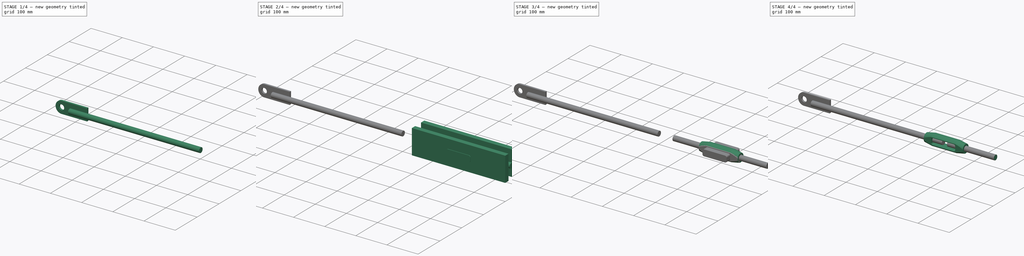
[diagram: build sequence overview — one tinted view per stage of 4, left to right]
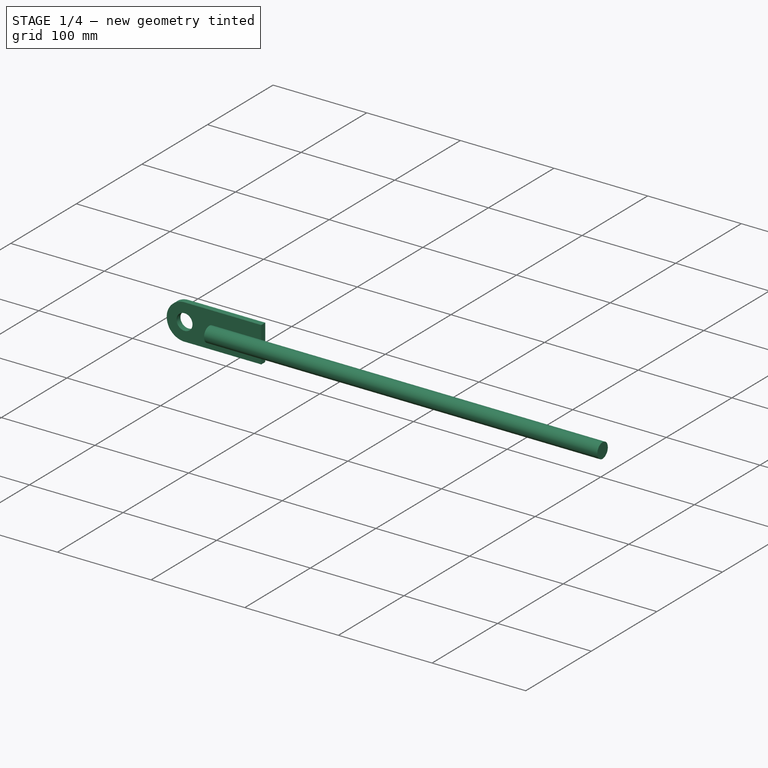
[diagram: stage 1 of 4 — iso view after this stage's code; geometry added in this stage tinted green]
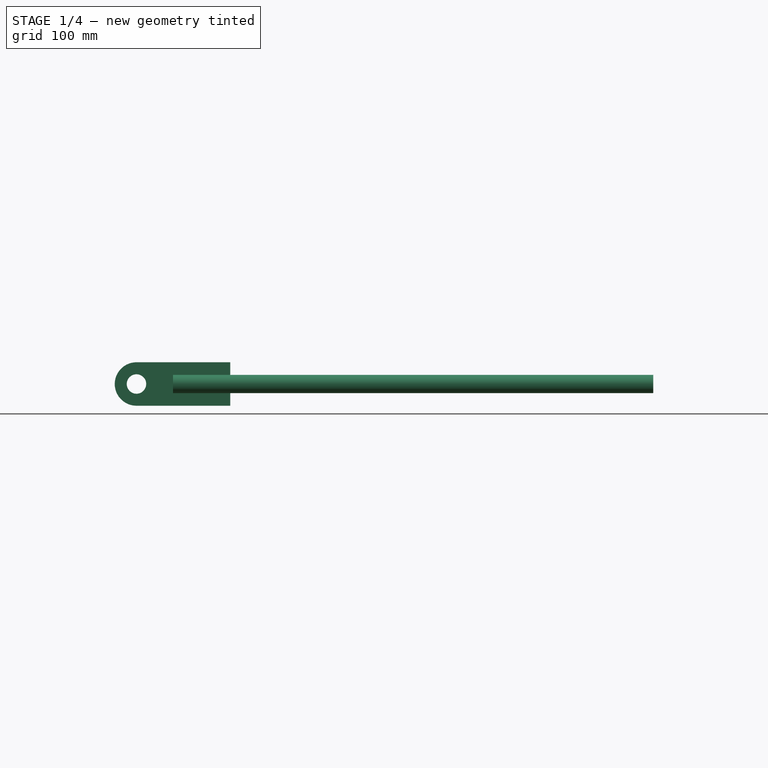
[diagram: stage 1 of 4 — front view after this stage's code; geometry added in this stage tinted green]
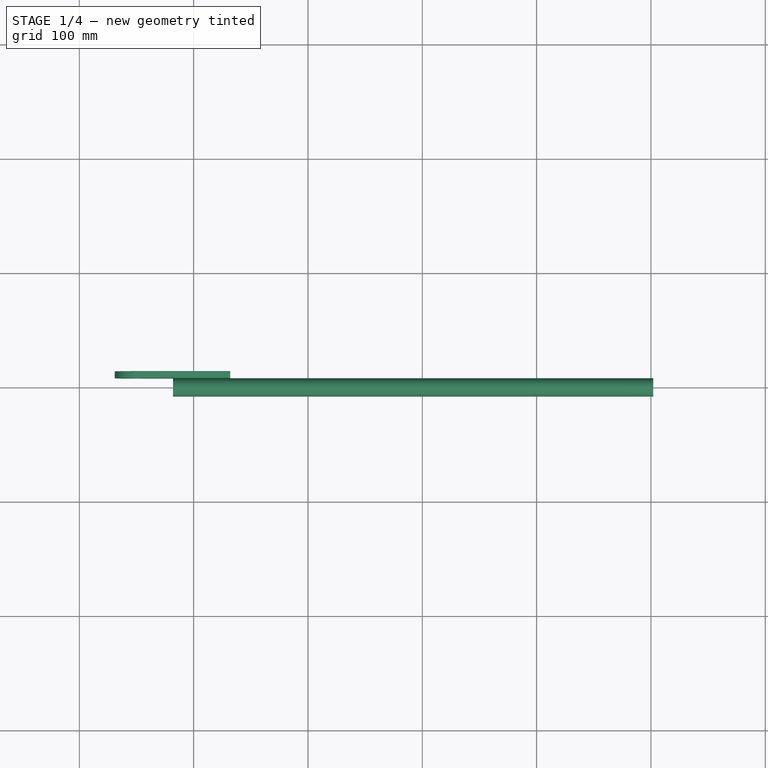
[diagram: stage 1 of 4 — top view after this stage's code; geometry added in this stage tinted green]
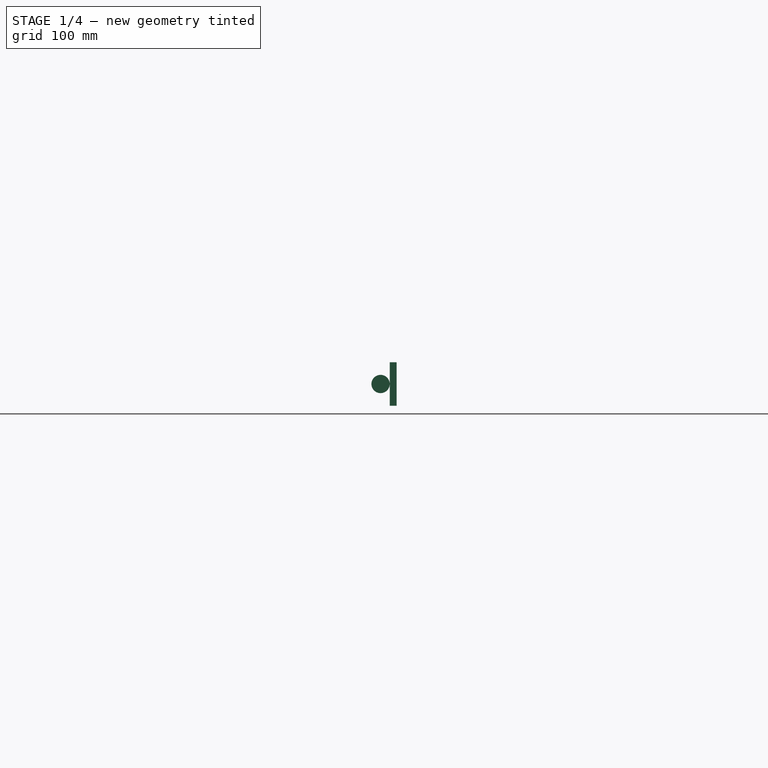
[diagram: stage 1 of 4 — right view after this stage's code; geometry added in this stage tinted green]
FCSTD DOCUMENT  (FreeCAD 1.0R39109 (Git))
Label: trunBackle
License: All rights reserved
objects: Sketcher::SketchObject×5, Part::Extrusion×4, Part::Cut×3, Part::Cylinder×2, Spreadsheet::Sheet×1, Part::Revolution×1, Part::FeaturePython×1, App::Part×1
note: 21 computed .brp shape members not serialized (recipe doc carries the construction recipe); baked Part::Feature solids carry a one-line shape summary decoded from their .brp

FEATURE [Part::Cylinder] Cylinder003  label="rod001"
  Angle = 360
  AttacherType = Attacher::AttachEngine3D
  FirstAngle = 0
  Height = 420
  Placement = pos=(-198,0,-1.37e-13) rot=(0,-1,0;1.5708rad)
  Radius = 8
  SecondAngle = 0
  expr: .Placement.Base.x = -(Spreadsheet001.dia * 3 + Spreadsheet001.lx)
  expr: Height = Spreadsheet001.l1
  expr: Radius = Spreadsheet001.dia / 2
FEATURE [Part::Extrusion] Extrude012
  Base = -> Sketch018
  Dir = (0,-1,2e-16)
  DirMode = 2
  FaceMakerClass = Part::FaceMakerBullseye
  FaceMakerMode = 3
  LengthFwd = 6
  LengthRev = 0
  Placement = pos=(0,-11,0) rot=(0,0,1;0rad)
  Solid = true
  Symmetric = true
  expr: .Placement.Base.y = -(Spreadsheet001.dia / 2 + Spreadsheet001.t0 / 2)
  expr: LengthFwd = Spreadsheet001.t0
FEATURE [Part::FeaturePython] Clone  label="Extrude013"  # Draft clone (typed FeaturePython)
  AttacherType = Attacher::AttachEngine3D
  Fuse = false
  Objects = -> [Extrude012]
  Placement = pos=(-650,11,0) rot=(0,1,0;3.14159rad)
  Scale = (1,1,1)
  expr: .Placement.Base.x = -Spreadsheet001.L0
  expr: .Placement.Base.y = Spreadsheet001.t0 / 2 + Spreadsheet001.dia / 2
FEATURE [App::Part] Part001  label="TurnBackleB"
  Group = -> [Spreadsheet001,Sketch018,Cylinder002,Extrude012,Revolve001,Sketch020,Cut010,Cut009,Extrude009,Extrude010,Extrude011,Sketch021,Sketch019,Sketch022,Cut011,Cylinder003,Clone]
  Origin = -> Origin001
  Placement = pos=(0,0,0) rot=(0,1,0;3.14159rad)
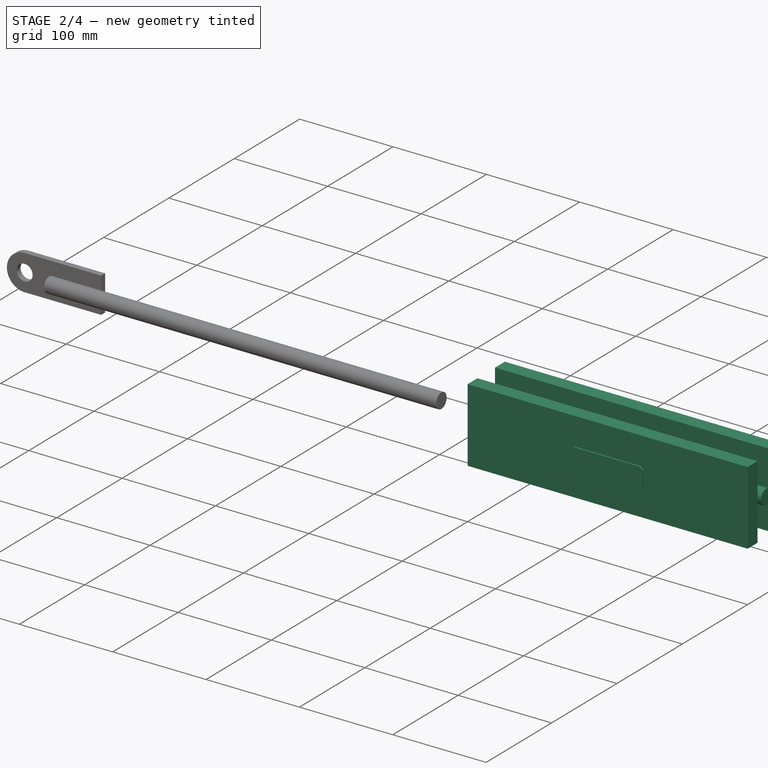
[diagram: stage 2 of 4 — iso view after this stage's code; geometry added in this stage tinted green]
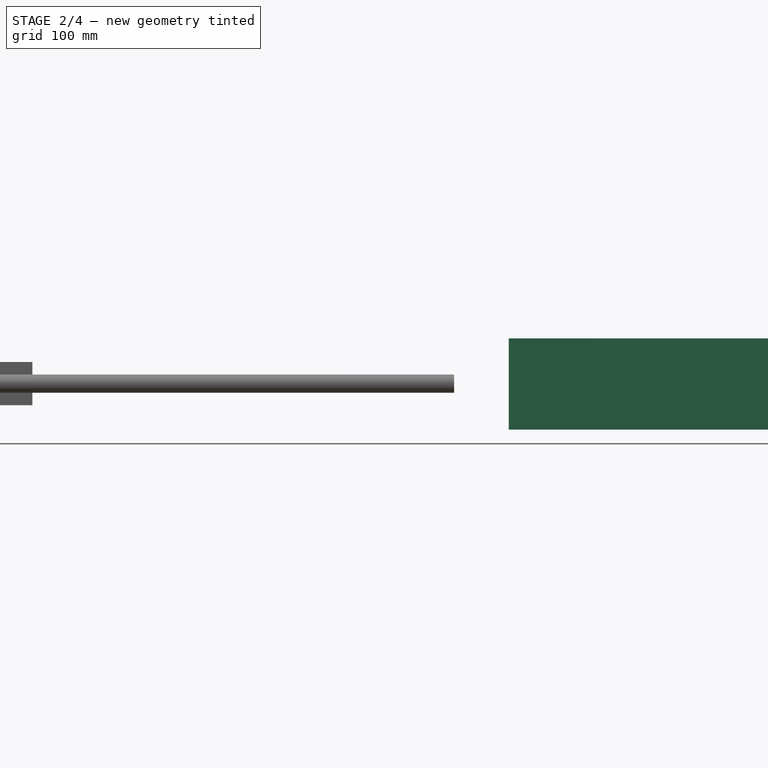
[diagram: stage 2 of 4 — front view after this stage's code; geometry added in this stage tinted green]
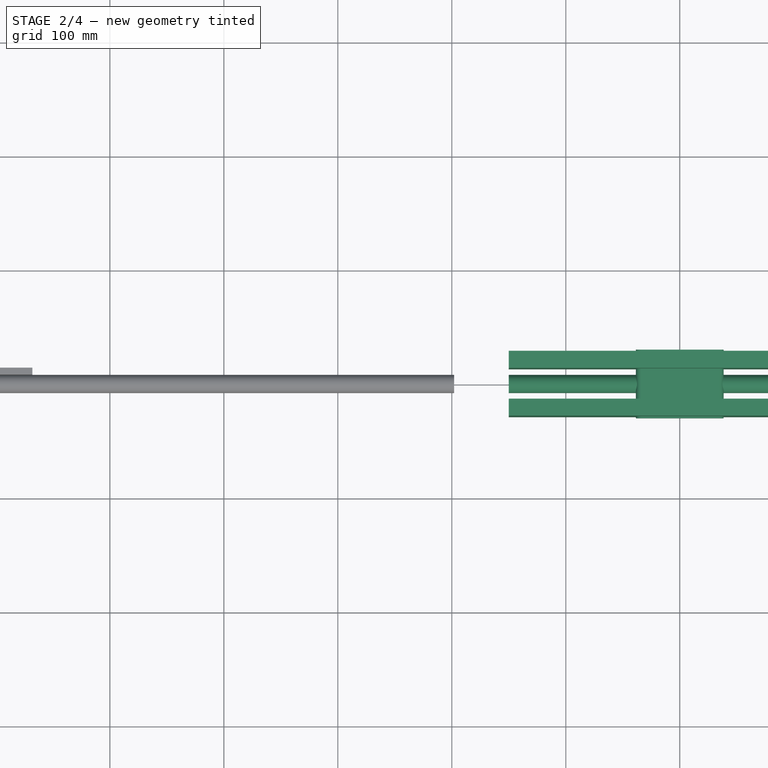
[diagram: stage 2 of 4 — top view after this stage's code; geometry added in this stage tinted green]
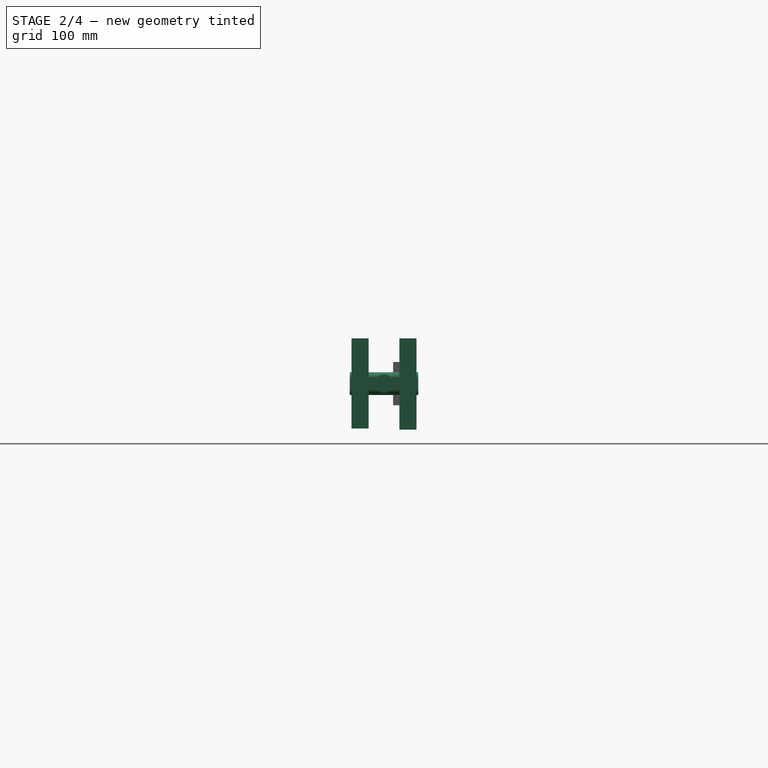
[diagram: stage 2 of 4 — right view after this stage's code; geometry added in this stage tinted green]
FEATURE [Sketcher::SketchObject] Sketch020
  ArcFitTolerance = 0
  FullyConstrained = false
  MakeInternals = false
  Placement = pos=(0,0,0) rot=(0.57735,0.57735,0.57735;2.0944rad)
  expr: Constraints[16] = Spreadsheet001.F6
  expr: Constraints[17] = Spreadsheet001.F6 / 2
  sketch-geometry (8):
    g0: LineSegment StartX=-13.5 StartY=39.685 StartZ=0 EndX=-28.5 EndY=39.685 EndZ=0
    g1: LineSegment StartX=-28.5 StartY=39.685 StartZ=0 EndX=-28.5 EndY=-39.3666 EndZ=0
    g2: LineSegment StartX=-28.5 StartY=-39.3666 StartZ=0 EndX=-13.5 EndY=-39.3666 EndZ=0
    g3: LineSegment StartX=-13.5 StartY=-39.3666 StartZ=0 EndX=-13.5 EndY=39.685 EndZ=0
    g4: LineSegment StartX=13.5 StartY=39.685 StartZ=0 EndX=28.5 EndY=39.685 EndZ=0
    g5: LineSegment StartX=28.5 StartY=39.685 StartZ=0 EndX=28.5 EndY=-40.315 EndZ=0
    g6: LineSegment StartX=28.5 StartY=-40.315 StartZ=0 EndX=13.5 EndY=-40.315 EndZ=0
    g7: LineSegment StartX=13.5 StartY=-40.315 StartZ=0 EndX=13.5 EndY=39.685 EndZ=0
  constraints (22):
    c: Coincident(g0,g1)
    c: Coincident(g1,g2)
    c: Coincident(g2,g3)
    c: Coincident(g3,g0)
    c: Horizontal(g0)
    c: Horizontal(g2)
    c: Vertical(g1)
    c: Vertical(g3)
    c: Coincident(g4,g5)
    c: Coincident(g5,g6)
    c: Coincident(g6,g7)
    c: Coincident(g7,g4)
    c: Horizontal(g4)
    c: Horizontal(g6)
    c: Vertical(g5)
    c: Vertical(g7)
    c: DistanceX(g0,g4) = 27
    c: Distance(g-1,g7) = 13.5
    c: Distance(g5) = 80
    c: Distance(g4) = 15
    c: Distance(g0) = 15
    c: Horizontal(g0,g4)
FEATURE [Part::Extrusion] Extrude009
  Base = -> Sketch020
  Dir = (1,0,0)
  DirMode = 2
  FaceMakerClass = Part::FaceMakerBullseye
  FaceMakerMode = 3
  LengthFwd = 300
  LengthRev = 0
  Solid = true
  Symmetric = true
FEATURE [Sketcher::SketchObject] Sketch021
  ArcFitTolerance = 0
  FullyConstrained = true
  MakeInternals = false
  Placement = pos=(0,0,0) rot=(1,0,0;1.5708rad)
  expr: Constraints[17] = Spreadsheet001.E6
  expr: Constraints[18] = Spreadsheet001.B6 - 2 * Spreadsheet001.C6
  expr: Constraints[19] = (Spreadsheet001.B6 - 2 * Spreadsheet001.C6) / 2
  expr: Constraints[20] = Spreadsheet001.E6 / 2
  sketch-geometry (9):
    g0: LineSegment StartX=38.5 StartY=5 StartZ=0 EndX=38.5 EndY=-5 EndZ=0
    g1: LineSegment StartX=33.5 StartY=-10 StartZ=0 EndX=-33.5 EndY=-10 EndZ=0
    g2: LineSegment StartX=-38.5 StartY=-5 StartZ=0 EndX=-38.5 EndY=5 EndZ=0
    g3: LineSegment StartX=-33.5 StartY=10 StartZ=0 EndX=33.5 EndY=10 EndZ=0
    g4: GeomPoint [constr] X=0 Y=0 Z=0
    g5: ArcOfCircle CenterX=-33.5 CenterY=5 CenterZ=0 NormalX=0 NormalY=0 NormalZ=1 AngleXU=0 Radius=5 StartAngle=1.5708 EndAngle=3.14159
    g6: ArcOfCircle CenterX=-33.5 CenterY=-5 CenterZ=0 NormalX=0 NormalY=0 NormalZ=1 AngleXU=0 Radius=5 StartAngle=3.14159 EndAngle=4.71239
    g7: ArcOfCircle CenterX=33.5 CenterY=-5 CenterZ=0 NormalX=0 NormalY=0 NormalZ=1 AngleXU=0 Radius=5 StartAngle=4.71239 EndAngle=6.28319
    g8: ArcOfCircle CenterX=33.5 CenterY=5 CenterZ=0 NormalX=0 NormalY=0 NormalZ=1 AngleXU=0 Radius=5 StartAngle=0 EndAngle=1.5708
  constraints (21):
    c: Horizontal(g1)
    c: Horizontal(g3)
    c: Vertical(g0)
    c: Vertical(g2)
    c: Coincident(g4,g-1)
    c: Tangent(g3,g5) = 1.5708
    c: Tangent(g2,g5) = 1.5708
    c: Tangent(g1,g6) = 1.5708
    c: Tangent(g2,g6) = 1.5708
    c: Tangent(g1,g7) = 1.5708
    c: Tangent(g0,g7) = 1.5708
    c: Tangent(g0,g8) = 1.5708
    c: Tangent(g3,g8) = 1.5708
    c: Radius(g8) = 5
    c: Equal(g8,g7)
    c: Equal(g7,g6)
    c: Equal(g6,g5)
    c: DistanceY(g1,g3) = 20
    c: DistanceX(g2,g0) = 77
    c: Distance(g4,g2) = 38.5
    c: Distance(g4,g1) = 10
FEATURE [Part::Extrusion] Extrude010
  Base = -> Sketch021
  Dir = (0,-1,2e-16)
  DirMode = 2
  FaceMakerClass = Part::FaceMakerBullseye
  FaceMakerMode = 3
  LengthFwd = 60
  LengthRev = 0
  Solid = true
  Symmetric = true
FEATURE [Sketcher::SketchObject] Sketch022
  ArcFitTolerance = 0
  FullyConstrained = true
  MakeInternals = false
  Placement = pos=(0,0,0) rot=(0.57735,0.57735,0.57735;2.0944rad)
  expr: Constraints[1] = Spreadsheet001.dia / 2
  sketch-geometry (1):
    g0: Circle CenterX=0 CenterY=0 CenterZ=0 NormalX=0 NormalY=0 NormalZ=1 AngleXU=0 Radius=8
  constraints (2):
    c: Coincident(g0,g-1)
    c: Radius(g0) = 8
FEATURE [Part::Extrusion] Extrude011
  Base = -> Sketch022
  Dir = (1,0,0)
  DirMode = 2
  FaceMakerClass = Part::FaceMakerBullseye
  FaceMakerMode = 3
  LengthFwd = 300
  LengthRev = 0
  Solid = true
  Symmetric = true
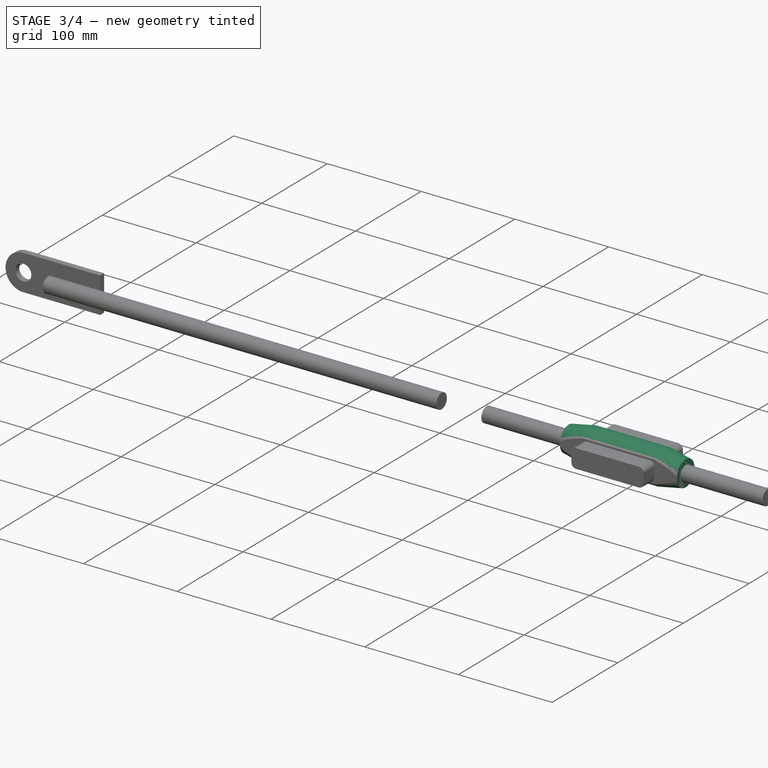
[diagram: stage 3 of 4 — iso view after this stage's code; geometry added in this stage tinted green]
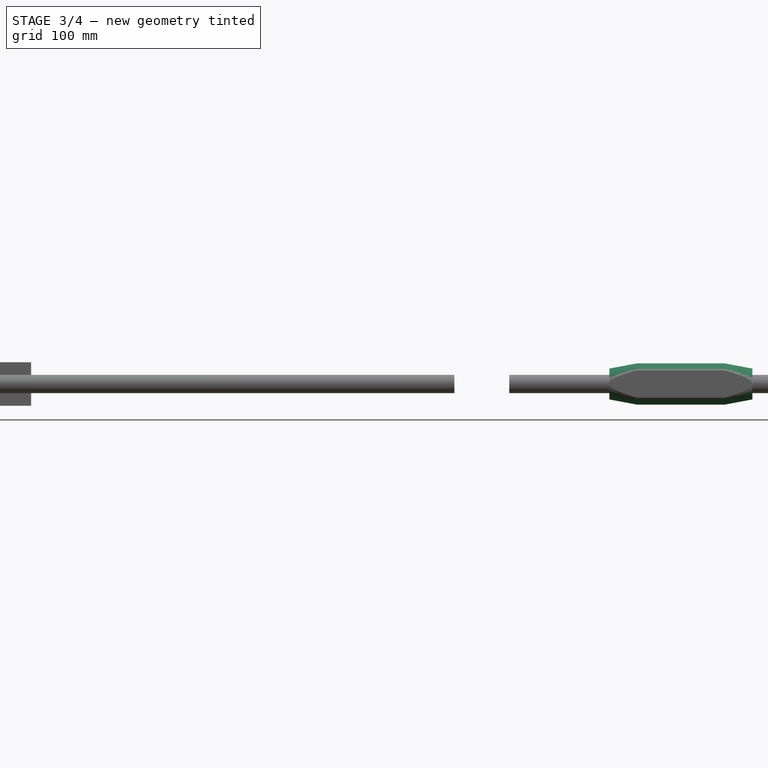
[diagram: stage 3 of 4 — front view after this stage's code; geometry added in this stage tinted green]
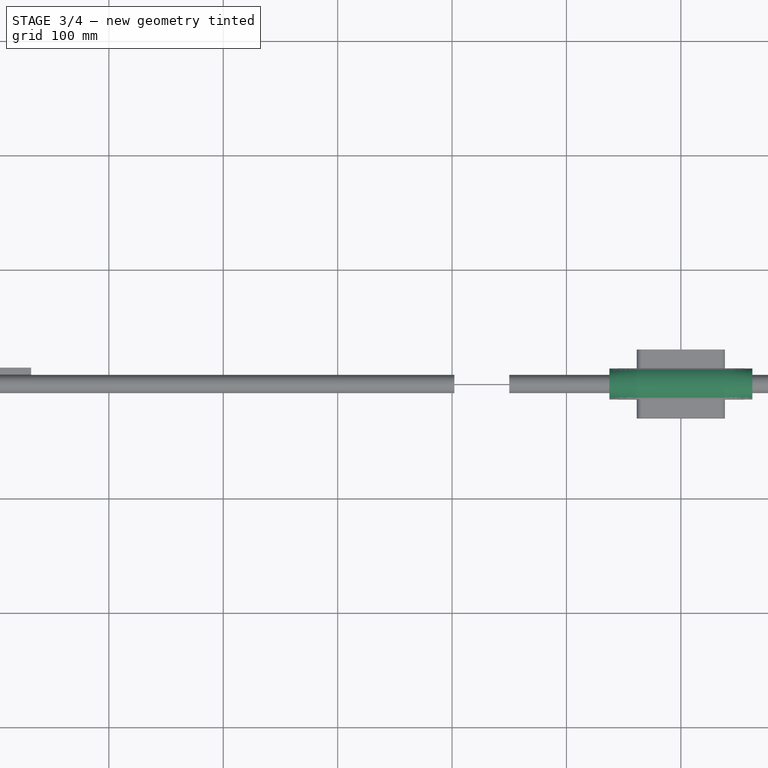
[diagram: stage 3 of 4 — top view after this stage's code; geometry added in this stage tinted green]
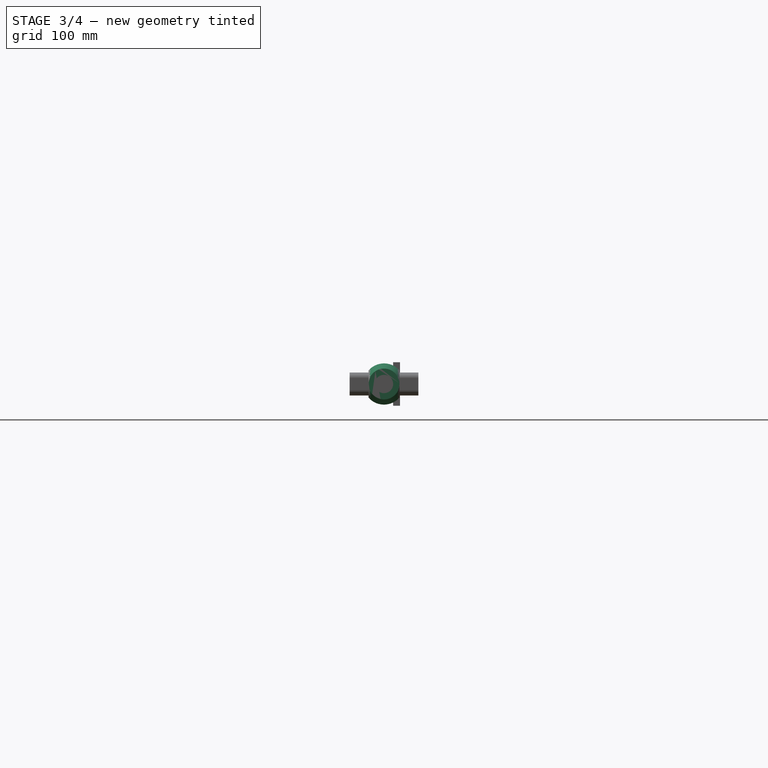
[diagram: stage 3 of 4 — right view after this stage's code; geometry added in this stage tinted green]
FEATURE [Sketcher::SketchObject] Sketch019
  ArcFitTolerance = 0
  FullyConstrained = true
  MakeInternals = false
  Placement = pos=(0,0,0) rot=(1,0,0;1.5708rad)
  expr: Constraints[10] = Spreadsheet001.C6
  expr: Constraints[11] = Spreadsheet001.B6
  expr: Constraints[12] = Spreadsheet001.D6 / 2
  expr: Constraints[13] = Spreadsheet001.F6 / 2
  expr: Constraints[14] = Spreadsheet001.B6 / 2
  expr: Constraints[17] = Spreadsheet001.C6
  sketch-geometry (6):
    g0: LineSegment StartX=-62.5 StartY=0 StartZ=0 EndX=-62.5 EndY=13.5 EndZ=0
    g1: LineSegment StartX=-62.5 StartY=13.5 StartZ=0 EndX=-38.5 EndY=18 EndZ=0
    g2: LineSegment StartX=-38.5 StartY=18 StartZ=0 EndX=38.5 EndY=18 EndZ=0
    g3: LineSegment StartX=38.5 StartY=18 StartZ=0 EndX=62.5 EndY=13.5 EndZ=0
    g4: LineSegment StartX=62.5 StartY=13.5 StartZ=0 EndX=62.5 EndY=0 EndZ=0
    g5: LineSegment StartX=62.5 StartY=0 StartZ=0 EndX=-62.5 EndY=0 EndZ=0
  constraints (18):
    c: PointOnObject(g0,g-1)
    c: Vertical(g0)
    c: Coincident(g0,g1)
    c: Coincident(g1,g2)
    c: Horizontal(g2)
    c: Coincident(g2,g3)
    c: Coincident(g3,g4)
    c: PointOnObject(g4,g-1)
    c: Vertical(g4)
    c: Coincident(g4,g5)
    c: DistanceX(g2,g3) = 24
    c: DistanceX(g0,g3) = 125
    c: Distance(g1,g5) = 18
    c: Distance(g4) = 13.5
    c: DistanceX(g-1,g4) = 62.5
    c: Horizontal(g0,g3)
    c: Coincident(g5,g0)
    c: DistanceX(g0,g1) = 24
FEATURE [Part::Revolution] Revolve001
  Angle = 360
  Axis = (-1,0,0)
  AxisLink = -> Sketch019 [Edge6]
  Base = (-62.5,0,0)
  FaceMakerClass = Part::FaceMakerBullseye
  Solid = true
  Source = -> Sketch019
  Symmetric = false
FEATURE [Part::Cut] Cut009
  Base = -> Revolve001
  Tool = -> Extrude009
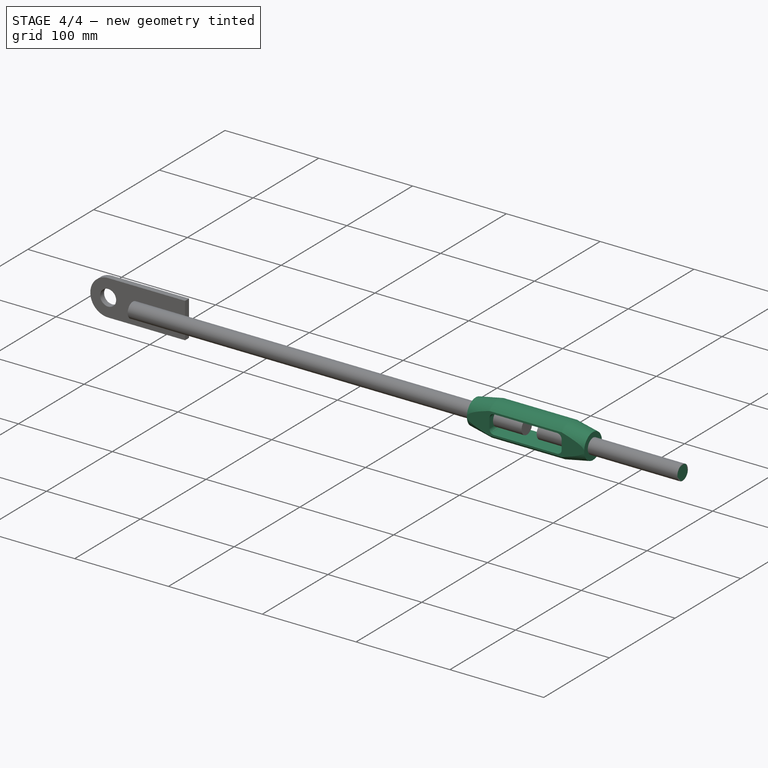
[diagram: stage 4 of 4 — iso view after this stage's code; geometry added in this stage tinted green]
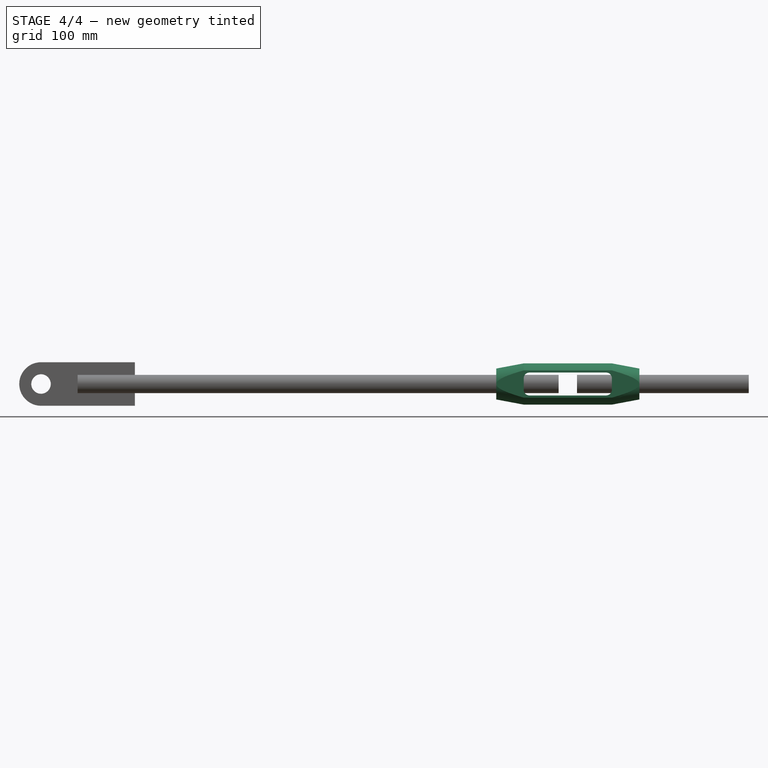
[diagram: stage 4 of 4 — front view after this stage's code; geometry added in this stage tinted green]
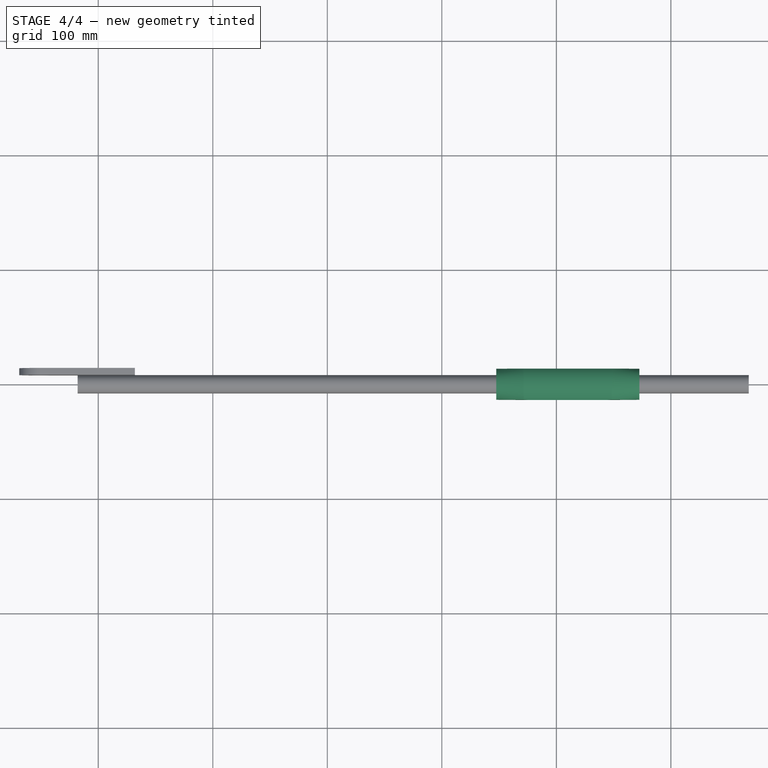
[diagram: stage 4 of 4 — top view after this stage's code; geometry added in this stage tinted green]
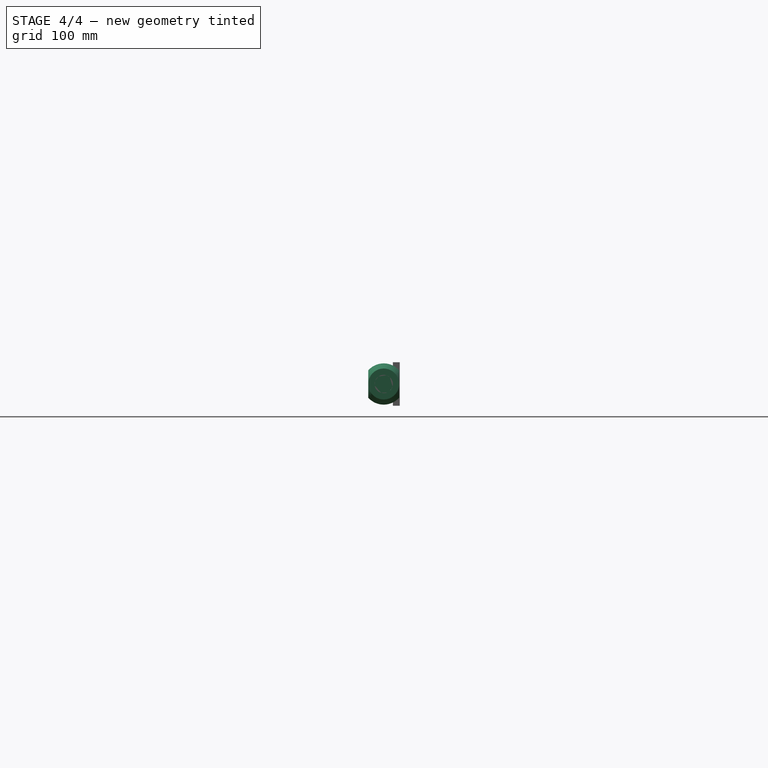
[diagram: stage 4 of 4 — right view after this stage's code; geometry added in this stage tinted green]
FEATURE [Spreadsheet::Sheet] Spreadsheet001
  cells = A1='B; A2='rodDia dia; B2(dia)=16; C2='thickness; D2(t0)=6; A3='length L0; B3(L0)=650; C3='l1; D3(l1)==L0 - (dia * 5 + lx); E3='lx; F3(lx)=150; B4='l; C4='l1; D4='a; E4='b; F4='c; G4='e; H4='f; I4='g; J4='h; K4='i; L4='r; A5='forkEndR; B5=100; D5=30; E5=13; F5=17; G5=20; H5=16; I5=50; J5=5; K5=16; L5=19; A6='turnBackle; B6=125; C6=24; D6=36; E6=20; F6=27; A7='forkEndL; B7=75; D7=30; E7=13; F7=16; G7=20; H7=16; I7=25; L7=19; A8=1; B8=2; C8=3; D8=4; E8=5; F8=6; G8=7; H8=8; I8=9; J8=10; K8=11; L8=12; A9='turnBackle; A10='d; B10='l; C10='l1; D10='a; E10='b; F10='c; G10='t0; A11=10; B11=75; C11=15; D11=24; E11=13; F11=17; G11=6; A12=12; B12=100; C12=20; D12=30; E12=16; F12=22; G12=6; A13=16; B13=125; C13=24; D13=36; E13=20; F13=27; G13=9; A14=20; B14=150; C14=28; D14=42; E14=23; F14=33; G14=9; A15=22; B15=175; C15=33; D15=48; E15=27; F15=37; G15=9; A16=24; B16=200; C16=38; D16=54; E16=30; F16=42; G16=12; A17=30; B17=250; C17=47; D17=66; E17=37; F17=52; G17=12; A18='forkEnd_L; A19='d; B19='l; C19='a; D19='b; E19='c; F19='e; G19='f; H19='g; I19='r; A20=10; B20=50; C20=20; D20=7; E20=10; F20=12; G20=10; H20=15; I20=12; A21=12; B21=60; C21=25; D21=10; E21=13; F21=16; G21=13; H21=20; I21=15; A22=16; B22=75; C22=30; D22=13; E22=16; F22=20; G22=16; H22=25; I22=19; A23=20; B23=90; C23=40; D23=16; E23=20; F23=24; G23=20; H23=30; I23=23; A24=22; B24=100; C24=45; D24=20; E24=23; F24=28; G24=23; H24=35; I24=27; A25=24; B25=115; C25=50; D25=23; E25=26; F25=32; G25=26; H25=40; I25=30; A26=30; B26=140; C26=65; D26=30; E26=33; F26=40; G26=33; H26=50; I26=38; A27='forkEnd_R; A28='d; B28='l; C28='a; D28='b; E28='c; F28='r; G28='e; H28='f; I28='g; +79 more cells
FEATURE [Sketcher::SketchObject] Sketch018
  ArcFitTolerance = 0
  FullyConstrained = true
  MakeInternals = false
  Placement = pos=(0,0,0) rot=(1,0,0;1.5708rad)
  expr: Constraints[11] = Spreadsheet001.I5 + Spreadsheet001.dia * 2
  expr: Constraints[1] = Spreadsheet001.F5 / 2
  expr: Constraints[3] = Spreadsheet001.L5
  sketch-geometry (5):
    g0: Circle CenterX=0 CenterY=0 CenterZ=0 NormalX=0 NormalY=0 NormalZ=1 AngleXU=0 Radius=8.5
    g1: ArcOfCircle CenterX=0 CenterY=0 CenterZ=0 NormalX=0 NormalY=0 NormalZ=1 AngleXU=0 Radius=19 StartAngle=4.71239 EndAngle=7.85398
    g2: LineSegment StartX=0 StartY=19 StartZ=0 EndX=-82 EndY=19 EndZ=0
    g3: LineSegment StartX=-82 StartY=19 StartZ=0 EndX=-82 EndY=-19 EndZ=0
    g4: LineSegment StartX=-82 StartY=-19 StartZ=0 EndX=0 EndY=-19 EndZ=0
  constraints (12):
    c: Coincident(g0,g-1)
    c: Radius(g0) = 8.5
    c: Coincident(g1,g0)
    c: Radius(g1) = 19
    c: Horizontal(g2)
    c: Coincident(g2,g3)
    c: Vertical(g3)
    c: Coincident(g3,g4)
    c: Horizontal(g4)
    c: Tangent(g1,g2) = -1.5708
    c: Tangent(g1,g4) = -1.5708
    c: Distance(g2) = 82
FEATURE [Part::Cylinder] Cylinder002  label="円柱001"
  Angle = 360
  AttacherType = Attacher::AttachEngine3D
  FirstAngle = 0
  Height = 150
  Placement = pos=(-32,0,0) rot=(0,-1,0;1.5708rad)
  Radius = 8
  SecondAngle = 0
  expr: .Placement.Base.x = -Spreadsheet001.dia * 2
  expr: Height = Spreadsheet001.lx
  expr: Radius = Spreadsheet001.dia / 2
FEATURE [Part::Cut] Cut010
  Base = -> Cut009
  Tool = -> Extrude010
FEATURE [Part::Cut] Cut011  label="turnBackle001"
  Base = -> Cut010
  Placement = pos=(-190,0,0) rot=(0,0,1;0rad)
  Tool = -> Extrude011
  expr: .Placement.Base.x = -(Spreadsheet001.dia * 2.5 + Spreadsheet001.lx)
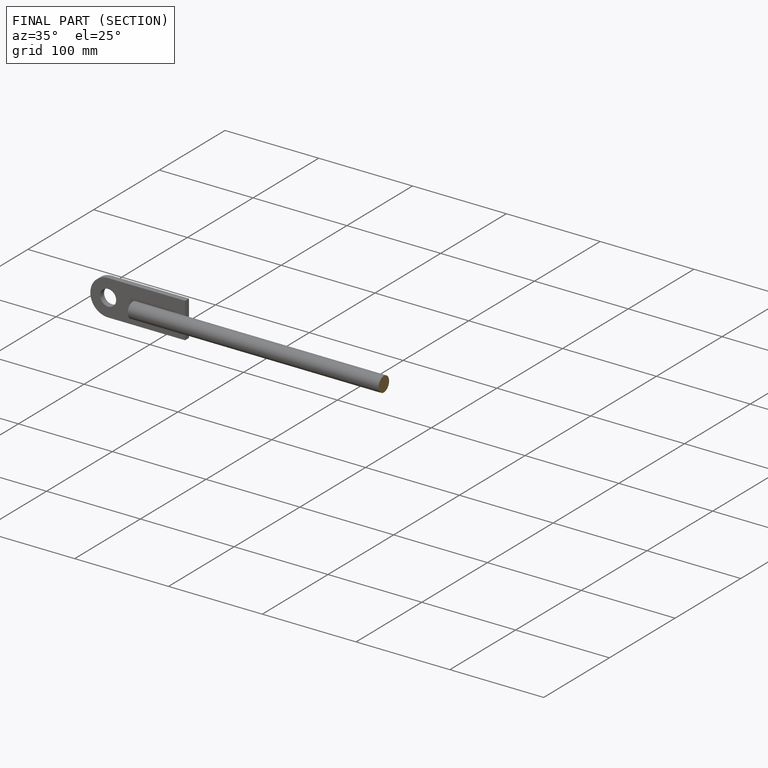
[diagram: finished part — half-section view (interior)]
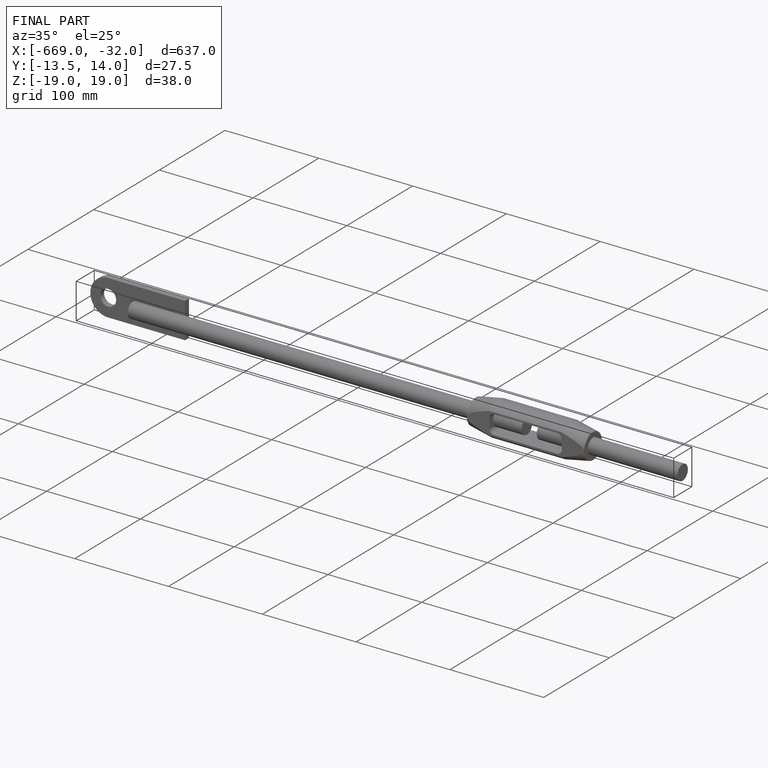
[diagram: finished part — iso view with bounding-box wireframe]
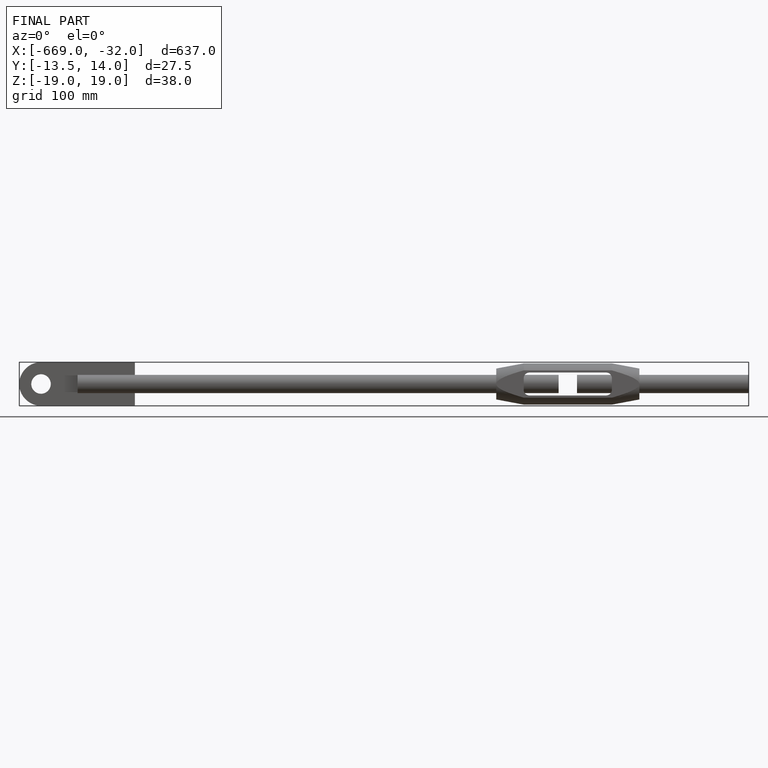
[diagram: finished part — front view with bounding-box wireframe]
